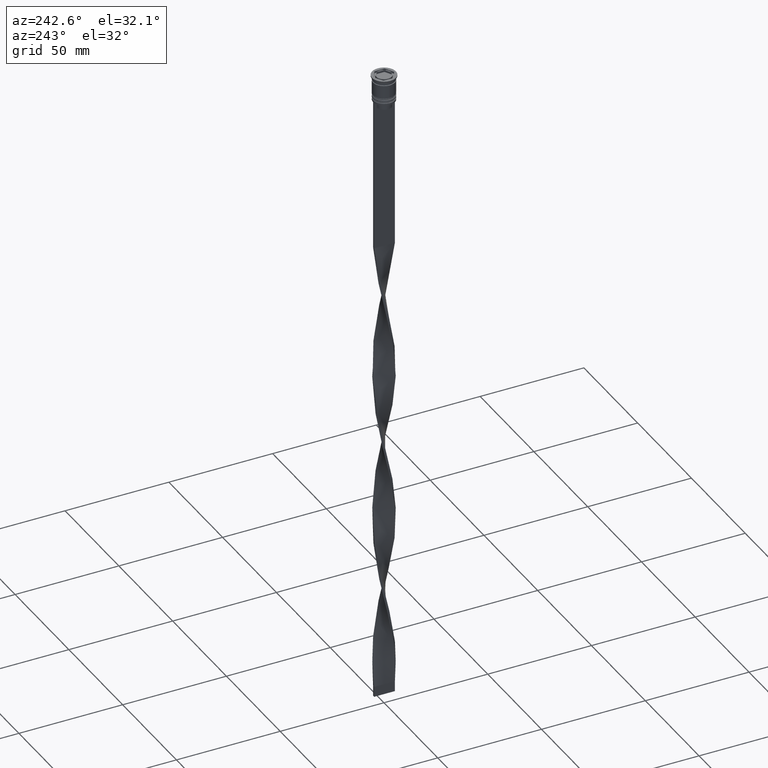
[diagram: clean part render]
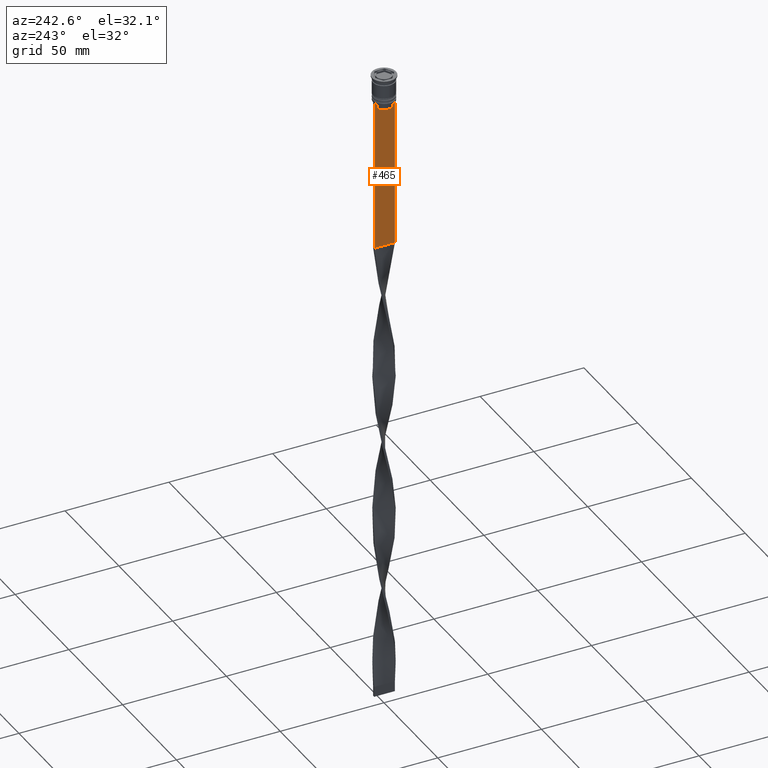
[diagram: same view with one face highlighted and labeled with its STEP entity id]
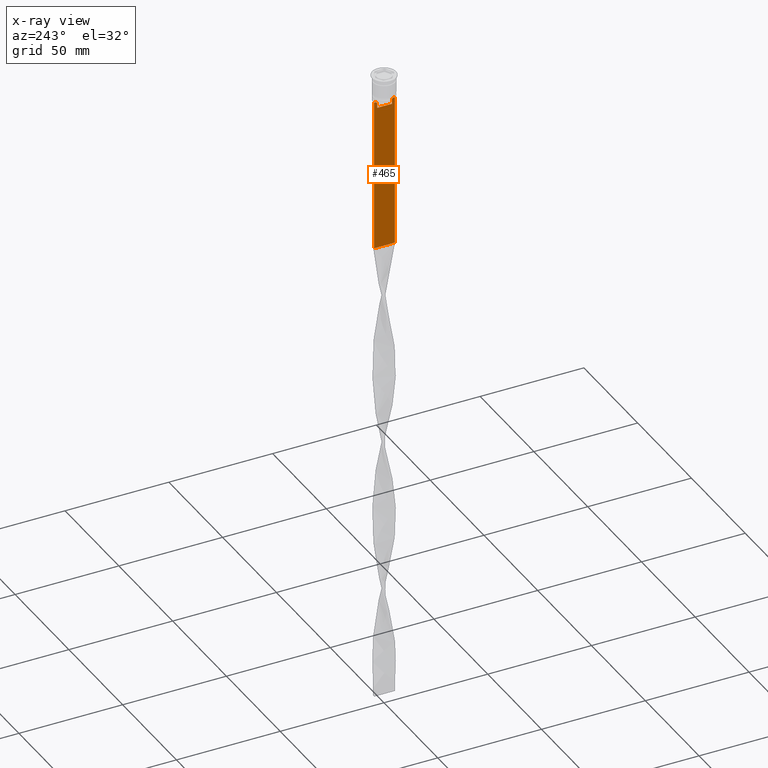
[diagram: x-ray of the same camera — body ghosted, the highlighted face saturated]
A machine part, auxiliary view. The second image highlights one B-rep face of the part: STEP entity #465.
The next image is the same camera in x-ray: the body ghosted, the highlighted face saturated — about 0% of this face is hidden behind the body in this view.
In plain terms, the highlighted planar face has unit normal (-1, 0, 0).
Its self-contained STEP definition (entity closure, byte-faithful):
#17 = DIRECTION ( 'NONE',  ( -0.000000000000000000, -0.000000000000000000, 1.000000000000000000 ) ) ;
#56 = DIRECTION ( 'NONE',  ( 0.000000000000000000, 0.000000000000000000, 1.000000000000000000 ) ) ;
#60 = LINE ( 'NONE', #3391, #139 ) ;
#65 = VERTEX_POINT ( 'NONE', #571 ) ;
#77 = VERTEX_POINT ( 'NONE', #1591 ) ;
#108 = ORIENTED_EDGE ( 'NONE', *, *, #3152, .F. ) ;
#139 = VECTOR ( 'NONE', #2780, 1000.000000000000000 ) ;
#200 = ORIENTED_EDGE ( 'NONE', *, *, #1320, .F. ) ;
#234 = EDGE_CURVE ( 'NONE', #1560, #594, #1867, .T. ) ;
#238 = ORIENTED_EDGE ( 'NONE', *, *, #234, .F. ) ;
#290 = DIRECTION ( 'NONE',  ( 0.000000000000000000, -1.000000000000000000, 0.000000000000000000 ) ) ;
#297 = LINE ( 'NONE', #1322, #2453 ) ;
#298 = CARTESIAN_POINT ( 'NONE',  ( -0.5000000000000000000, 5.000000000000000888, -86.00000000000000000 ) ) ;
#309 = CARTESIAN_POINT ( 'NONE',  ( -0.5000000000000000000, -3.951794168112525263, -12.66675163073526100 ) ) ;
#336 = EDGE_CURVE ( 'NONE', #2328, #1679, #1536, .T. ) ;
#370 = ORIENTED_EDGE ( 'NONE', *, *, #3286, .F. ) ;
#465 = ADVANCED_FACE ( 'NONE', ( #1968 ), #3171, .T. ) ;
#523 = AXIS2_PLACEMENT_3D ( 'NONE', #1661, #2891, #56 ) ;
#549 = VERTEX_POINT ( 'NONE', #3424 ) ;
#571 = CARTESIAN_POINT ( 'NONE',  ( -0.5000000000000000000, 5.000000000000000888, -12.50000000000000000 ) ) ;
#582 = CARTESIAN_POINT ( 'NONE',  ( -0.5000000000000000000, 3.615591237958188042, 0.000000000000000000 ) ) ;
#594 = VERTEX_POINT ( 'NONE', #3485 ) ;
#824 = CARTESIAN_POINT ( 'NONE',  ( -0.5000000000000000000, -3.615591237958188042, -13.00000000000000178 ) ) ;
#876 = CARTESIAN_POINT ( 'NONE',  ( -0.5000000000000000000, 3.783746449387932920, -12.83342999751715752 ) ) ;
#886 = EDGE_CURVE ( 'NONE', #549, #1560, #2618, .T. ) ;
#983 = VECTOR ( 'NONE', #3063, 1000.000000000000000 ) ;
#1126 = VERTEX_POINT ( 'NONE', #2401 ) ;
#1145 = ORIENTED_EDGE ( 'NONE', *, *, #1694, .T. ) ;
#1171 = ORIENTED_EDGE ( 'NONE', *, *, #886, .F. ) ;
#1219 = CARTESIAN_POINT ( 'NONE',  ( -0.5000000000000000000, -4.999999999999999112, -12.50000000000000000 ) ) ;
#1245 = CARTESIAN_POINT ( 'NONE',  ( -0.5000000000000000000, -4.119769411022908834, -12.50000000000000000 ) ) ;
#1297 = EDGE_CURVE ( 'NONE', #1679, #549, #3202, .T. ) ;
#1320 = EDGE_CURVE ( 'NONE', #65, #1329, #3045, .T. ) ;
#1322 = CARTESIAN_POINT ( 'NONE',  ( -0.5000000000000000000, 3.650000000000003464, -15.50000000000000000 ) ) ;
#1329 = VERTEX_POINT ( 'NONE', #3304 ) ;
#1360 = VECTOR ( 'NONE', #3294, 1000.000000000000000 ) ;
#1398 = CARTESIAN_POINT ( 'NONE',  ( -0.5000000000000000000, 3.615591237958188042, -13.00000000000000178 ) ) ;
#1473 = CARTESIAN_POINT ( 'NONE',  ( -0.5000000000000000000, -4.999999999999999112, -12.50000000000000000 ) ) ;
#1518 = CARTESIAN_POINT ( 'NONE',  ( -0.5000000000000000000, -3.615591237958188042, 0.000000000000000000 ) ) ;
#1536 = LINE ( 'NONE', #1518, #2450 ) ;
#1560 = VERTEX_POINT ( 'NONE', #1473 ) ;
#1591 = CARTESIAN_POINT ( 'NONE',  ( -0.5000000000000000000, 3.615591237958188042, -13.00000000000000178 ) ) ;
#1661 = CARTESIAN_POINT ( 'NONE',  ( -0.5000000000000000000, -4.999999999999999112, -2.450124378879110054 ) ) ;
#1679 = VERTEX_POINT ( 'NONE', #824 ) ;
#1694 = EDGE_CURVE ( 'NONE', #65, #2464, #2036, .T. ) ;
#1715 = CARTESIAN_POINT ( 'NONE',  ( -0.5000000000000000000, 5.000000000000000888, -2.450124378879110054 ) ) ;
#1773 = LINE ( 'NONE', #582, #1360 ) ;
#1867 = LINE ( 'NONE', #2404, #983 ) ;
#1887 = ORIENTED_EDGE ( 'NONE', *, *, #3427, .F. ) ;
#1968 = FACE_OUTER_BOUND ( 'NONE', #3017, .T. ) ;
#2036 = LINE ( 'NONE', #1715, #3132 ) ;
#2169 = CARTESIAN_POINT ( 'NONE',  ( -0.5000000000000000000, -3.615591237958188486, -15.50000000000000000 ) ) ;
#2191 = EDGE_CURVE ( 'NONE', #1329, #77, #2833, .T. ) ;
#2290 = CARTESIAN_POINT ( 'NONE',  ( -0.5000000000000000000, -4.999999999999999112, -12.50000000000000000 ) ) ;
#2328 = VERTEX_POINT ( 'NONE', #2169 ) ;
#2401 = CARTESIAN_POINT ( 'NONE',  ( -0.5000000000000000000, 3.615591237958188486, -15.50000000000000000 ) ) ;
#2404 = CARTESIAN_POINT ( 'NONE',  ( -0.5000000000000000000, -4.999999999999999112, -2.450124378879110054 ) ) ;
#2450 = VECTOR ( 'NONE', #17, 1000.000000000000000 ) ;
#2453 = VECTOR ( 'NONE', #3487, 1000.000000000000000 ) ;
#2464 = VERTEX_POINT ( 'NONE', #298 ) ;
#2510 = ORIENTED_EDGE ( 'NONE', *, *, #1297, .F. ) ;
#2618 = LINE ( 'NONE', #2290, #3258 ) ;
#2680 = CARTESIAN_POINT ( 'NONE',  ( -0.5000000000000000000, 3.951794205566887985, -12.66675159355373737 ) ) ;
#2780 = DIRECTION ( 'NONE',  ( 0.000000000000000000, 1.000000000000000000, 0.000000000000000000 ) ) ;
#2792 = ORIENTED_EDGE ( 'NONE', *, *, #336, .F. ) ;
#2833 = B_SPLINE_CURVE_WITH_KNOTS ( 'NONE', 3,
 ( #2995, #2680, #876, #1398 ),
 .UNSPECIFIED., .F., .F.,
 ( 4, 4 ),
 ( 0.007067514914986629433, 0.007777582239375527111 ),
 .UNSPECIFIED. ) ;
#2846 = VECTOR ( 'NONE', #290, 1000.000000000000000 ) ;
#2891 = DIRECTION ( 'NONE',  ( -1.000000000000000000, 0.000000000000000000, 0.000000000000000000 ) ) ;
#2995 = CARTESIAN_POINT ( 'NONE',  ( -0.5000000000000000000, 4.119769411022908834, -12.50000000000000000 ) ) ;
#3016 = DIRECTION ( 'NONE',  ( 0.000000000000000000, 0.000000000000000000, -1.000000000000000000 ) ) ;
#3017 = EDGE_LOOP ( 'NONE', ( #3725, #200, #1145, #370, #238, #1171, #2510, #2792, #1887, #108 ) ) ;
#3045 = LINE ( 'NONE', #1219, #2846 ) ;
#3063 = DIRECTION ( 'NONE',  ( 0.000000000000000000, 0.000000000000000000, -1.000000000000000000 ) ) ;
#3132 = VECTOR ( 'NONE', #3016, 1000.000000000000000 ) ;
#3152 = EDGE_CURVE ( 'NONE', #77, #1126, #1773, .T. ) ;
#3171 = PLANE ( 'NONE',  #523 ) ;
#3202 = B_SPLINE_CURVE_WITH_KNOTS ( 'NONE', 3,
 ( #3923, #3328, #309, #1245 ),
 .UNSPECIFIED., .F., .F.,
 ( 4, 4 ),
 ( 0.01745179617248910492, 0.01816207215777258452 ),
 .UNSPECIFIED. ) ;
#3258 = VECTOR ( 'NONE', #3492, 1000.000000000000000 ) ;
#3286 = EDGE_CURVE ( 'NONE', #594, #2464, #60, .T. ) ;
#3294 = DIRECTION ( 'NONE',  ( 0.000000000000000000, 0.000000000000000000, -1.000000000000000000 ) ) ;
#3304 = CARTESIAN_POINT ( 'NONE',  ( -0.5000000000000000000, 4.119769411022908834, -12.50000000000000000 ) ) ;
#3328 = CARTESIAN_POINT ( 'NONE',  ( -0.5000000000000000000, -3.783746406711538945, -12.83343003979123687 ) ) ;
#3391 = CARTESIAN_POINT ( 'NONE',  ( -0.5000000000000000000, -4.999999999999999112, -86.00000000000000000 ) ) ;
#3424 = CARTESIAN_POINT ( 'NONE',  ( -0.5000000000000000000, -4.119769411022908834, -12.50000000000000000 ) ) ;
#3427 = EDGE_CURVE ( 'NONE', #1126, #2328, #297, .T. ) ;
#3485 = CARTESIAN_POINT ( 'NONE',  ( -0.5000000000000000000, -4.999999999999999112, -86.00000000000000000 ) ) ;
#3487 = DIRECTION ( 'NONE',  ( 0.000000000000000000, -1.000000000000000000, 0.000000000000000000 ) ) ;
#3492 = DIRECTION ( 'NONE',  ( 0.000000000000000000, -1.000000000000000000, 0.000000000000000000 ) ) ;
#3725 = ORIENTED_EDGE ( 'NONE', *, *, #2191, .F. ) ;
#3923 = CARTESIAN_POINT ( 'NONE',  ( -0.5000000000000000000, -3.615591237958188042, -13.00000000000000178 ) ) ;